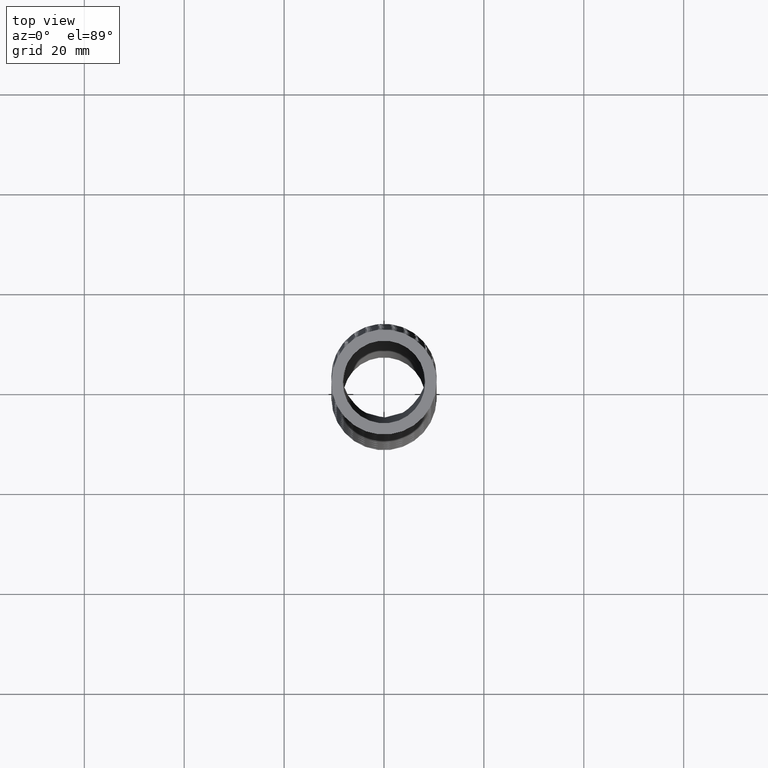
[diagram: clean part render]
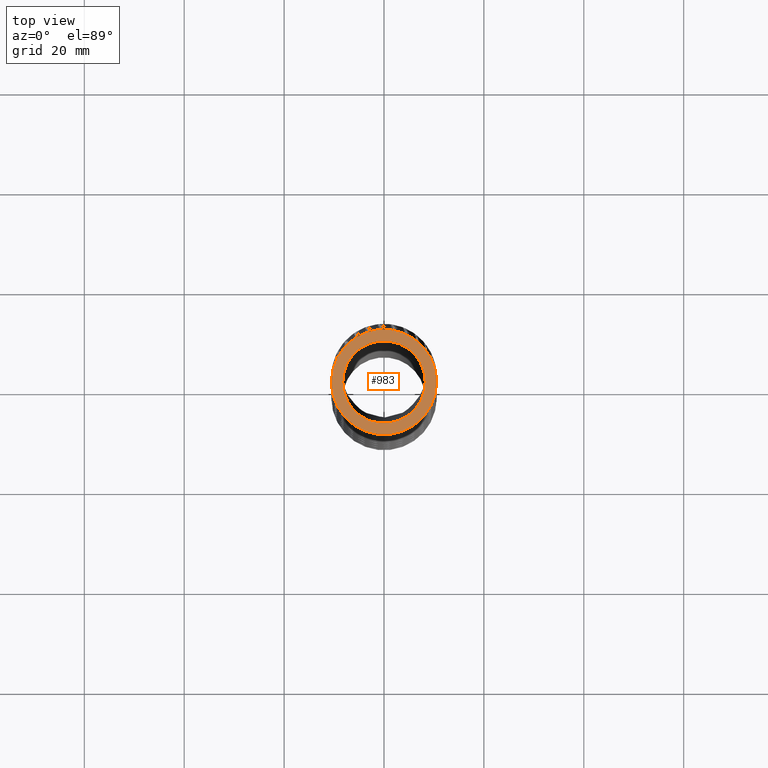
[diagram: same view with one face highlighted and labeled with its STEP entity id]
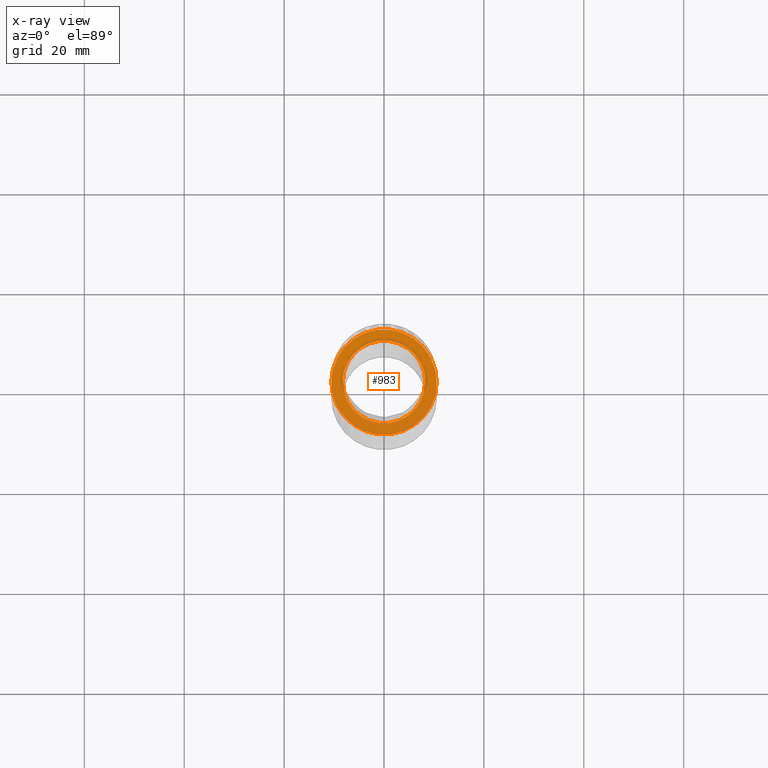
[diagram: x-ray of the same camera — body ghosted, the highlighted face saturated]
A machine part, top view. The second image highlights one B-rep face of the part: STEP entity #983.
The next image is the same camera in x-ray: the body ghosted, the highlighted face saturated — about 0% of this face is hidden behind the body in this view.
In plain terms, the highlighted planar face has unit normal (0, 0, 1).
Its self-contained STEP definition (entity closure, byte-faithful):
#619 = EDGE_CURVE ( 'NONE', #627, #628, #2228, .T. ) ;
#627 = VERTEX_POINT ( 'NONE', #2344 ) ;
#628 = VERTEX_POINT ( 'NONE', #2407 ) ;
#754 = VERTEX_POINT ( 'NONE', #4502 ) ;
#757 = VERTEX_POINT ( 'NONE', #4739 ) ;
#761 = EDGE_CURVE ( 'NONE', #754, #757, #4732, .T. ) ;
#968 = EDGE_CURVE ( 'NONE', #628, #627, #9092, .T. ) ;
#974 = ORIENTED_EDGE ( 'NONE', *, *, #619, .T. ) ;
#975 = ORIENTED_EDGE ( 'NONE', *, *, #976, .F. ) ;
#976 = EDGE_CURVE ( 'NONE', #757, #754, #9409, .T. ) ;
#977 = EDGE_LOOP ( 'NONE', ( #978, #974 ) ) ;
#978 = ORIENTED_EDGE ( 'NONE', *, *, #968, .T. ) ;
#979 = ORIENTED_EDGE ( 'NONE', *, *, #761, .F. ) ;
#982 = EDGE_LOOP ( 'NONE', ( #979, #975 ) ) ;
#983 = ADVANCED_FACE ( 'NONE', ( #9400, #9551 ), #9515, .T. ) ;
#2224 = DIRECTION ( 'NONE',  ( 0.0000000000000000000, 0.0000000000000000000, 1.000000000000000000 ) ) ;
#2226 = CARTESIAN_POINT ( 'NONE',  ( 0.0000000000000000000, 0.0000000000000000000, 0.0000000000000000000 ) ) ;
#2227 = AXIS2_PLACEMENT_3D ( 'NONE', #2226, #2224, #2369 ) ;
#2228 = CIRCLE ( 'NONE', #2227, 0.4150000000000000900 ) ;
#2344 = CARTESIAN_POINT ( 'NONE',  ( -0.4150000000000000900, 5.082284216461516900E-017, 0.0000000000000000000 ) ) ;
#2369 = DIRECTION ( 'NONE',  ( 1.000000000000000000, 0.0000000000000000000, 0.0000000000000000000 ) ) ;
#2407 = CARTESIAN_POINT ( 'NONE',  ( 0.4150000000000000900, 0.0000000000000000000, 0.0000000000000000000 ) ) ;
#4502 = CARTESIAN_POINT ( 'NONE',  ( 0.3250000000000000100, 0.0000000000000000000, 0.0000000000000000000 ) ) ;
#4732 = CIRCLE ( 'NONE', #4802, 0.3250000000000000100 ) ;
#4739 = CARTESIAN_POINT ( 'NONE',  ( -0.3250000000000000100, 3.980102097228898400E-017, 0.0000000000000000000 ) ) ;
#4799 = DIRECTION ( 'NONE',  ( 1.000000000000000000, 0.0000000000000000000, 0.0000000000000000000 ) ) ;
#4800 = DIRECTION ( 'NONE',  ( 0.0000000000000000000, 0.0000000000000000000, 1.000000000000000000 ) ) ;
#4801 = CARTESIAN_POINT ( 'NONE',  ( 0.0000000000000000000, 0.0000000000000000000, 0.0000000000000000000 ) ) ;
#4802 = AXIS2_PLACEMENT_3D ( 'NONE', #4801, #4800, #4799 ) ;
#9092 = CIRCLE ( 'NONE', #9285, 0.4150000000000000900 ) ;
#9282 = DIRECTION ( 'NONE',  ( 1.000000000000000000, 0.0000000000000000000, 0.0000000000000000000 ) ) ;
#9283 = DIRECTION ( 'NONE',  ( 0.0000000000000000000, 0.0000000000000000000, 1.000000000000000000 ) ) ;
#9284 = CARTESIAN_POINT ( 'NONE',  ( 0.0000000000000000000, 0.0000000000000000000, 0.0000000000000000000 ) ) ;
#9285 = AXIS2_PLACEMENT_3D ( 'NONE', #9284, #9283, #9282 ) ;
#9400 = FACE_BOUND ( 'NONE', #982, .T. ) ;
#9402 = DIRECTION ( 'NONE',  ( 1.000000000000000000, 0.0000000000000000000, 0.0000000000000000000 ) ) ;
#9404 = DIRECTION ( 'NONE',  ( 0.0000000000000000000, 0.0000000000000000000, 1.000000000000000000 ) ) ;
#9406 = CARTESIAN_POINT ( 'NONE',  ( 0.0000000000000000000, 0.0000000000000000000, 0.0000000000000000000 ) ) ;
#9407 = AXIS2_PLACEMENT_3D ( 'NONE', #9406, #9404, #9402 ) ;
#9409 = CIRCLE ( 'NONE', #9407, 0.3250000000000000100 ) ;
#9505 = DIRECTION ( 'NONE',  ( 0.0000000000000000000, 0.0000000000000000000, 1.000000000000000000 ) ) ;
#9507 = CARTESIAN_POINT ( 'NONE',  ( 0.0000000000000000000, 0.0000000000000000000, 0.0000000000000000000 ) ) ;
#9509 = AXIS2_PLACEMENT_3D ( 'NONE', #9507, #9505, #9608 ) ;
#9515 = PLANE ( 'NONE',  #9509 ) ;
#9551 = FACE_OUTER_BOUND ( 'NONE', #977, .T. ) ;
#9608 = DIRECTION ( 'NONE',  ( 1.000000000000000000, 0.0000000000000000000, 0.0000000000000000000 ) ) ;